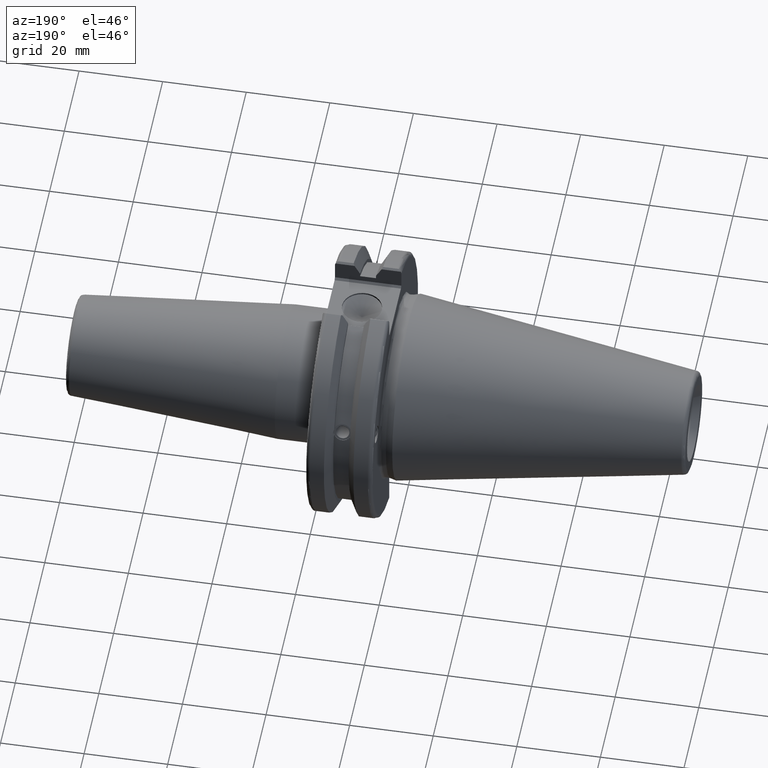
[diagram: clean part render]
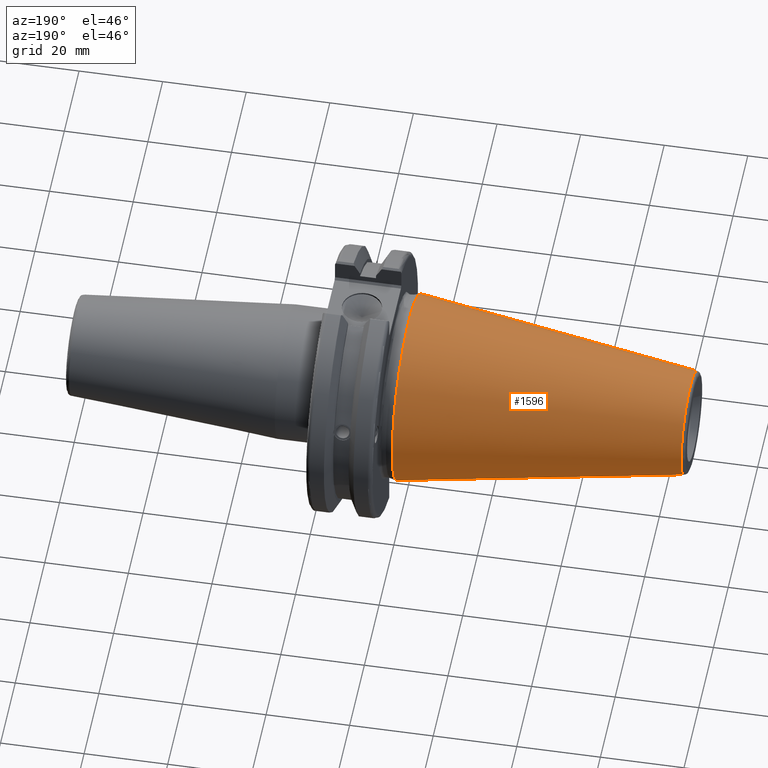
[diagram: same view with one face highlighted and labeled with its STEP entity id]
A machine part, auxiliary view. The second image highlights one B-rep face of the part: STEP entity #1596.
In plain terms, the highlighted conical surface has half-angle 8.297 deg.
Its self-contained STEP definition (entity closure, byte-faithful):
#167=LINE('',#3029,#262);
#262=VECTOR('',#2214,17.2484375);
#288=CONICAL_SURFACE('',#1796,17.2484375,0.144812498238939);
#436=FACE_OUTER_BOUND('',#545,.T.);
#545=EDGE_LOOP('',(#1392,#1393,#1394,#1395,#1396));
#636=CIRCLE('',#1790,12.3966635780937);
#637=CIRCLE('',#1791,12.3966635780937);
#641=CIRCLE('',#1797,22.225);
#795=VERTEX_POINT('',#3016);
#796=VERTEX_POINT('',#3017);
#799=VERTEX_POINT('',#3027);
#1009=EDGE_CURVE('',#795,#796,#636,.T.);
#1010=EDGE_CURVE('',#796,#795,#637,.T.);
#1014=EDGE_CURVE('',#799,#799,#641,.T.);
#1015=EDGE_CURVE('',#799,#796,#167,.T.);
#1392=ORIENTED_EDGE('',*,*,#1014,.F.);
#1393=ORIENTED_EDGE('',*,*,#1015,.T.);
#1394=ORIENTED_EDGE('',*,*,#1009,.F.);
#1395=ORIENTED_EDGE('',*,*,#1010,.F.);
#1396=ORIENTED_EDGE('',*,*,#1015,.F.);
#1596=ADVANCED_FACE('',(#436),#288,.T.);
#1790=AXIS2_PLACEMENT_3D('',#3018,#2198,#2199);
#1791=AXIS2_PLACEMENT_3D('',#3019,#2200,#2201);
#1796=AXIS2_PLACEMENT_3D('',#3026,#2210,#2211);
#1797=AXIS2_PLACEMENT_3D('',#3028,#2212,#2213);
#2198=DIRECTION('center_axis',(-1.,0.,0.));
#2199=DIRECTION('ref_axis',(0.,-1.,3.06161699786838E-17));
#2200=DIRECTION('center_axis',(-1.,0.,0.));
#2201=DIRECTION('ref_axis',(0.,-1.,3.06161699786838E-17));
#2210=DIRECTION('center_axis',(1.,0.,0.));
#2211=DIRECTION('ref_axis',(0.,1.,0.));
#2212=DIRECTION('center_axis',(1.,0.,0.));
#2213=DIRECTION('ref_axis',(0.,0.,-1.));
#2214=DIRECTION('',(-0.989532981063282,0.144306893071729,1.76724974695192E-17));
#3016=CARTESIAN_POINT('',(-67.3943068930717,-1.5181534371019E-15,12.3966635780937));
#3017=CARTESIAN_POINT('',(-67.3943068930718,-12.3966635780937,-1.5181534371019E-15));
#3018=CARTESIAN_POINT('Origin',(-67.3943068930717,0.,-1.89769179637738E-15));
#3019=CARTESIAN_POINT('Origin',(-67.3943068930717,0.,-1.89769179637738E-15));
#3026=CARTESIAN_POINT('Origin',(-34.125,0.,0.));
#3027=CARTESIAN_POINT('',(0.,-22.225,-2.72177751110499E-15));
#3028=CARTESIAN_POINT('Origin',(0.,0.,0.));
#3029=CARTESIAN_POINT('',(-34.125,-17.2484375,-2.11232437746682E-15));